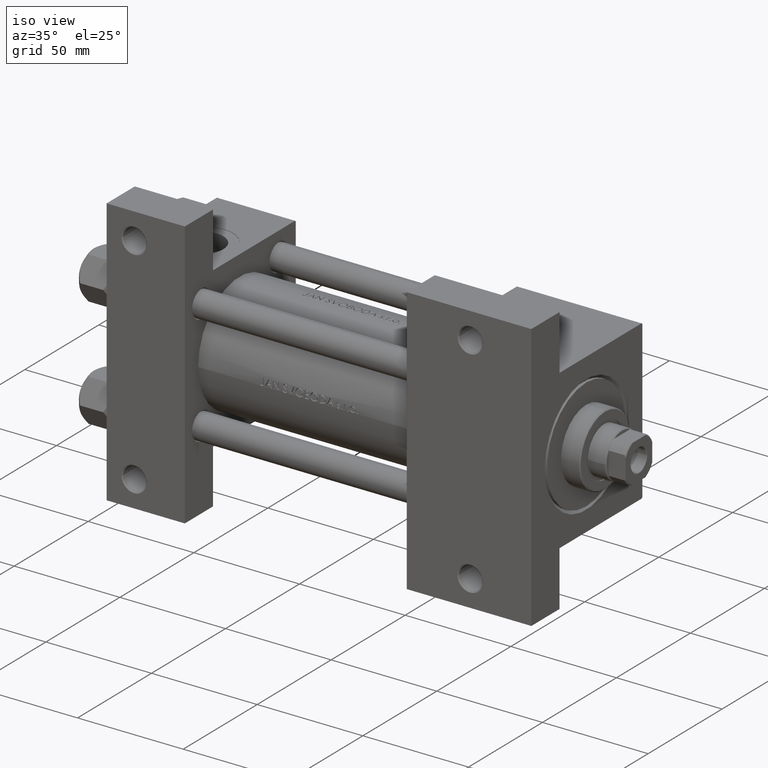
[diagram: clean part render]
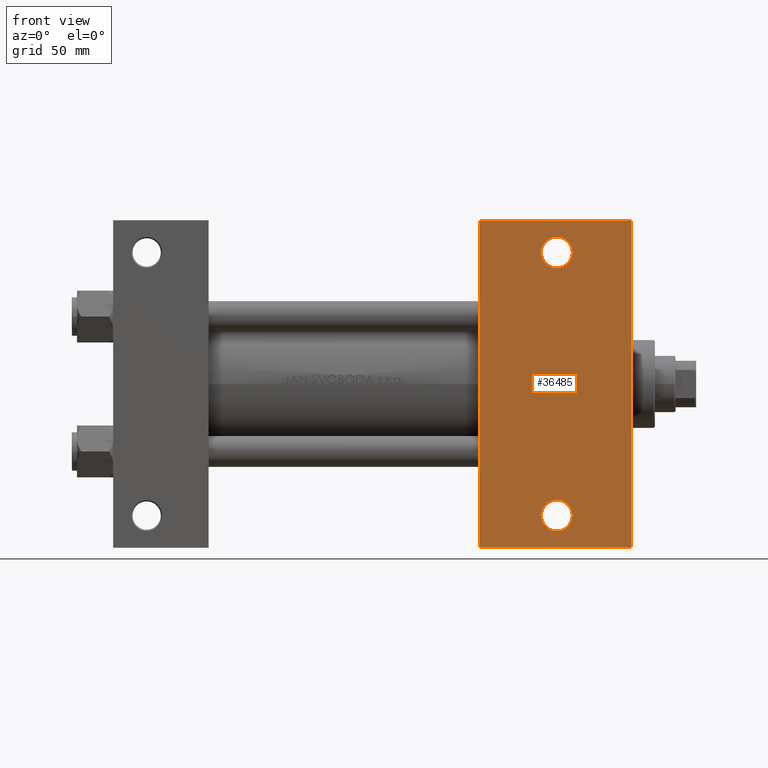
[diagram: tour spotlight — one face highlighted and labeled with its STEP entity id]
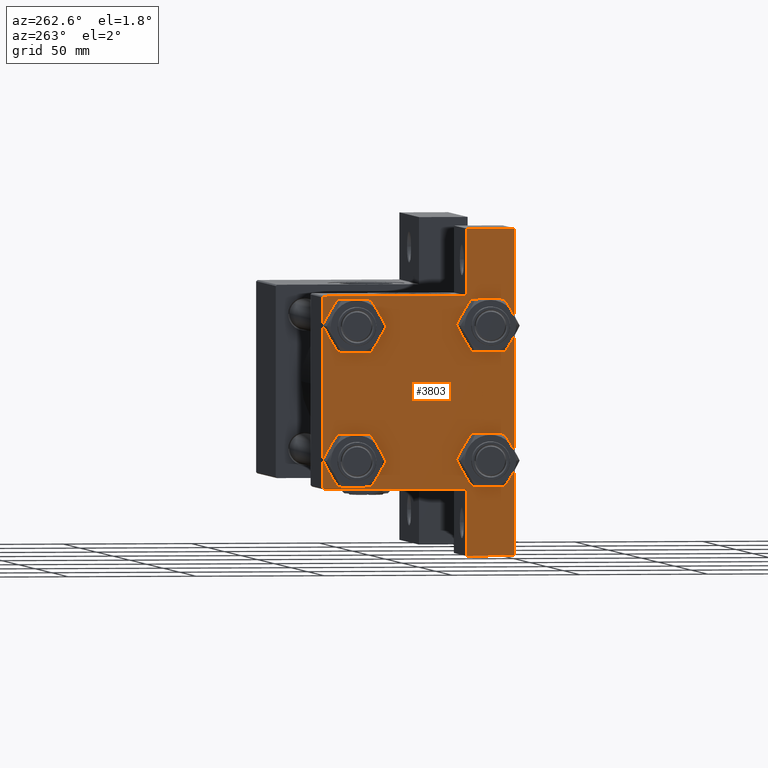
[diagram: tour spotlight — one face highlighted and labeled with its STEP entity id]
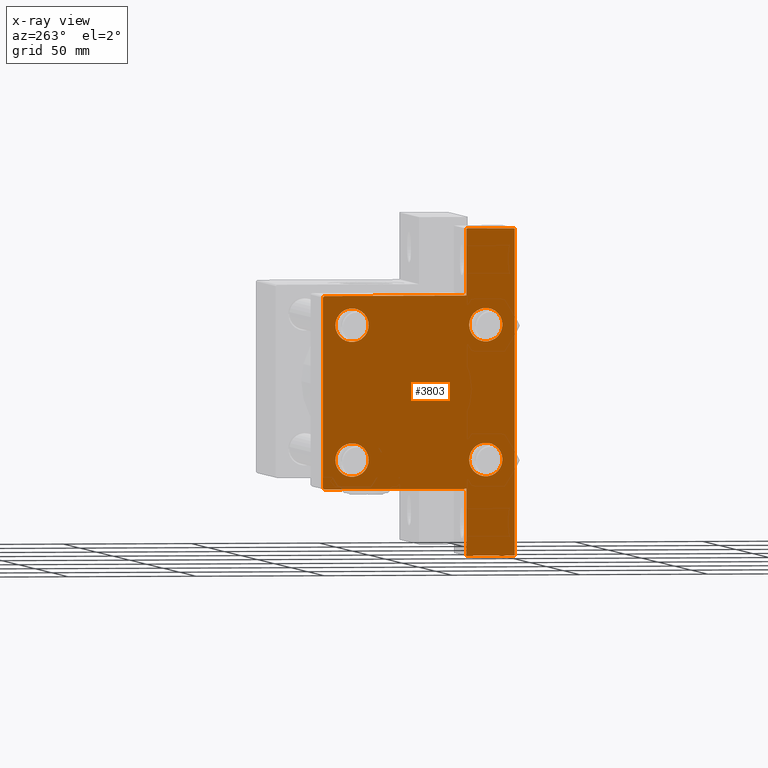
[diagram: x-ray of the same camera — body ghosted, this tour face saturated]
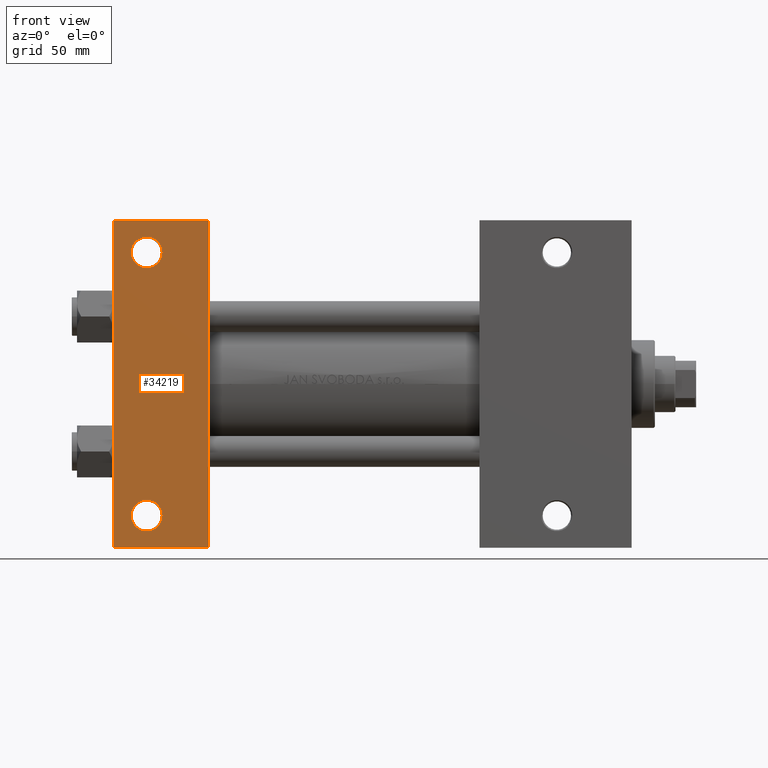
[diagram: tour spotlight — one face highlighted and labeled with its STEP entity id]
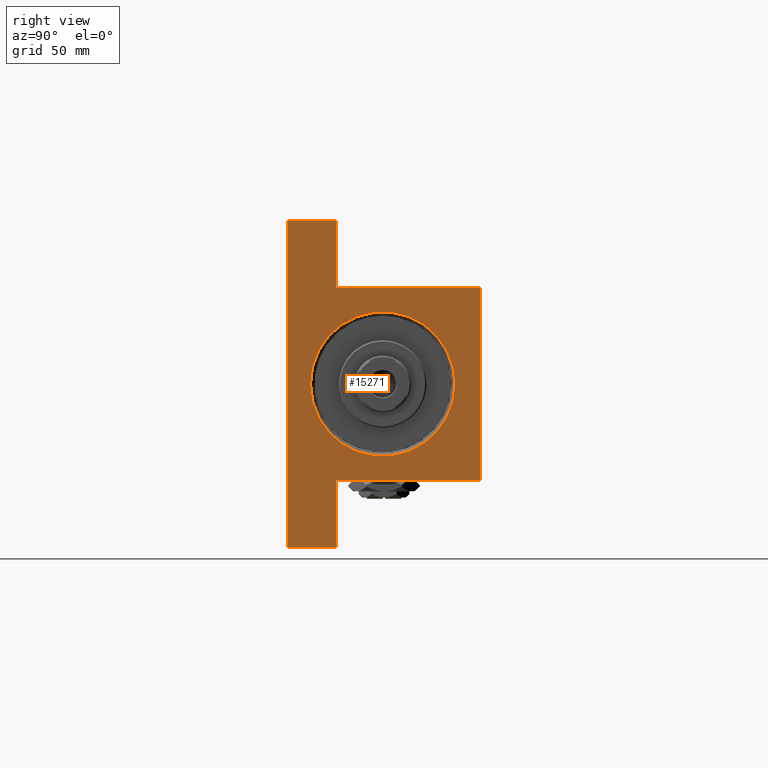
[diagram: tour spotlight — one face highlighted and labeled with its STEP entity id]
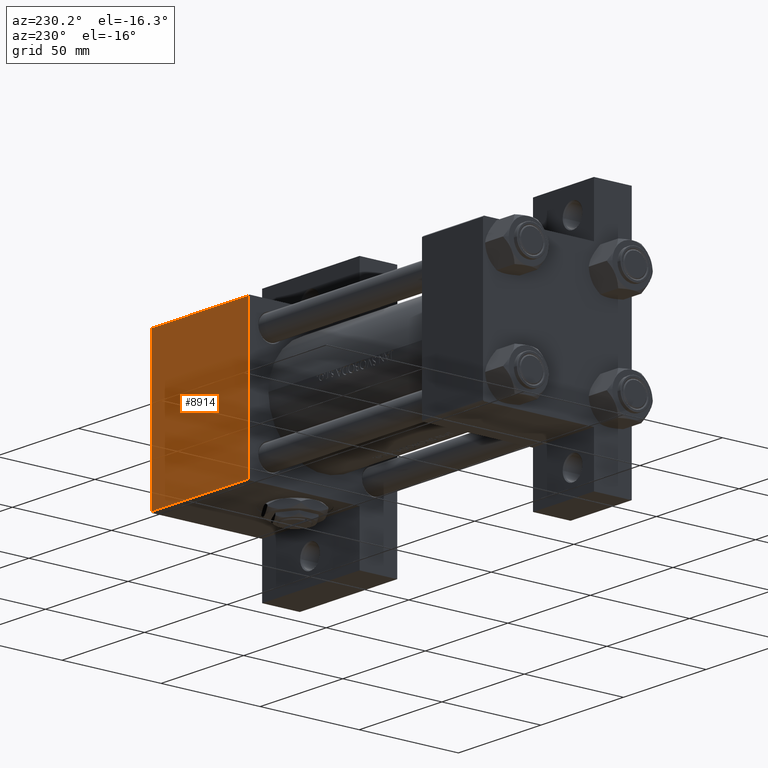
[diagram: tour spotlight — one face highlighted and labeled with its STEP entity id]
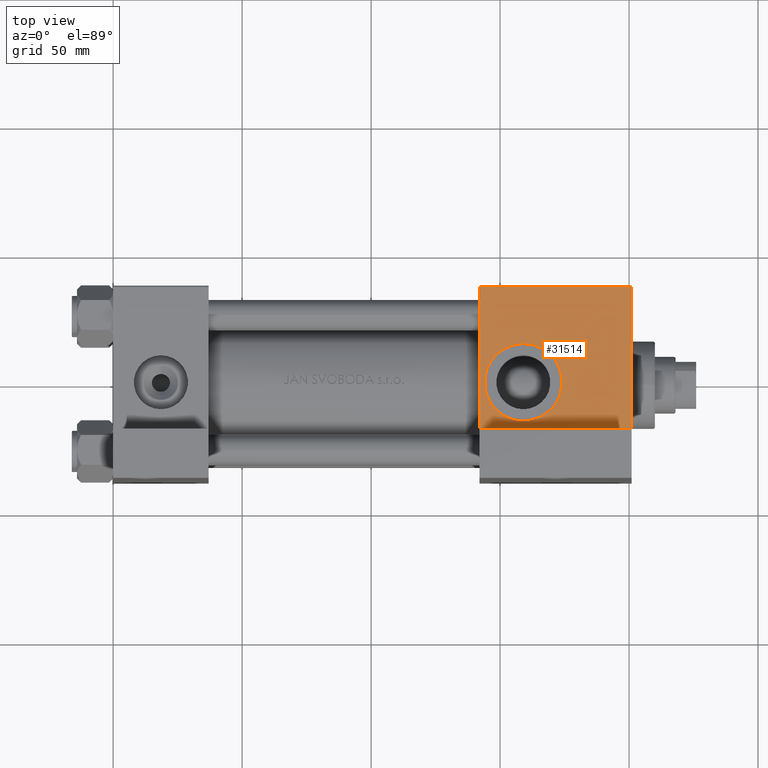
[diagram: tour spotlight — one face highlighted and labeled with its STEP entity id]
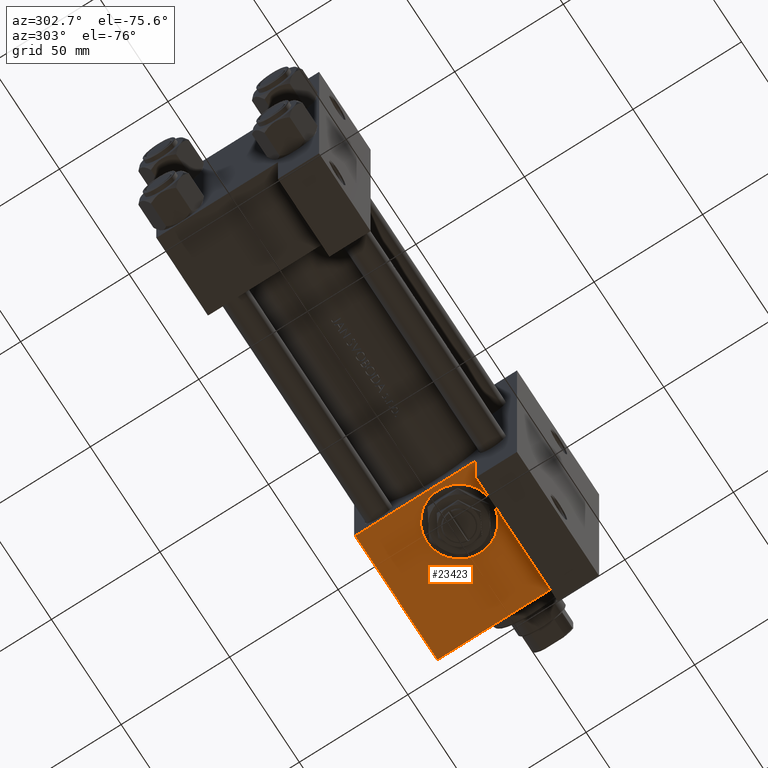
[diagram: tour spotlight — one face highlighted and labeled with its STEP entity id]
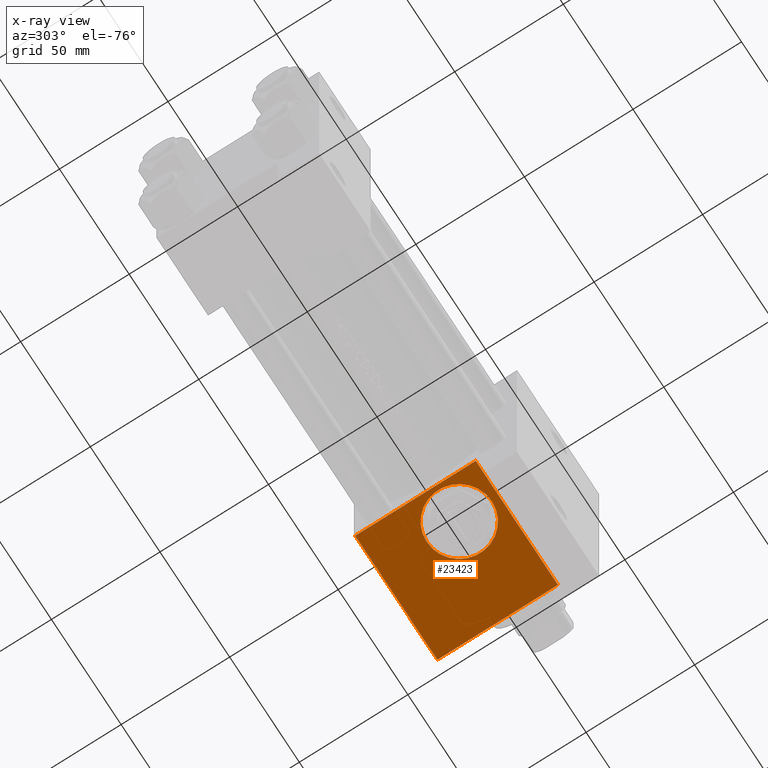
[diagram: x-ray of the same camera — body ghosted, this tour face saturated]
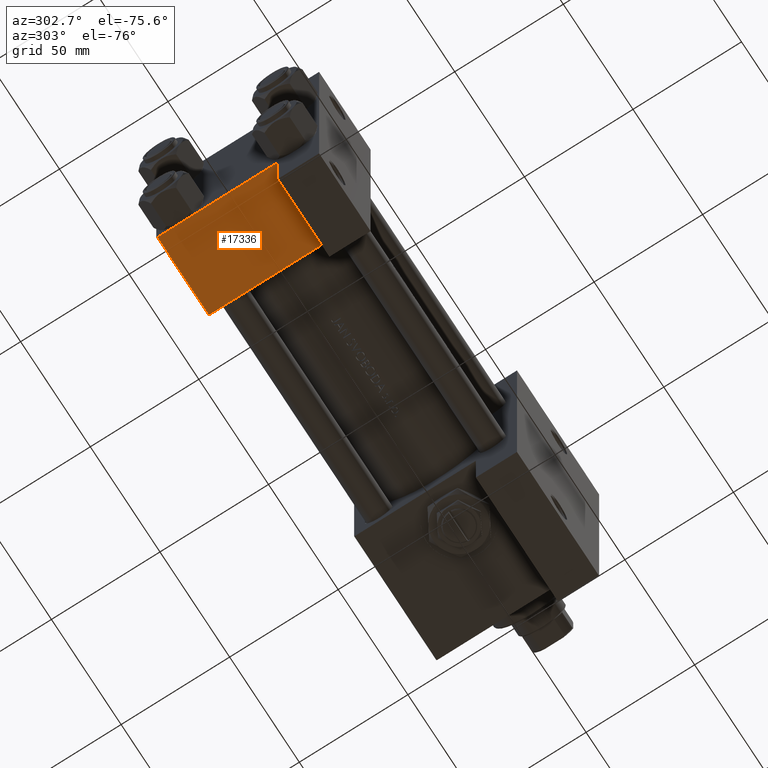
[diagram: tour spotlight — one face highlighted and labeled with its STEP entity id]
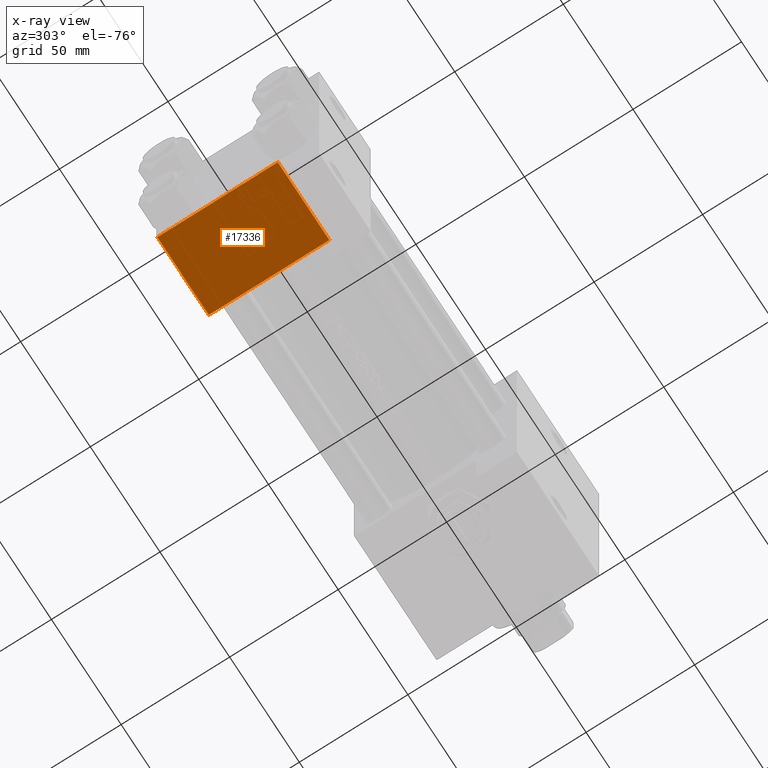
[diagram: x-ray of the same camera — body ghosted, this tour face saturated]
A machine part: a face-by-face anatomy tour. The part has 1134 B-rep faces; the first image is the clean iso view, then the 8 largest visible faces are spotlighted one at a time (largest first), each with its STEP entity span.

Face 1 — front view, entity #36485. In plain terms, the highlighted planar face has unit normal (0, -1, 0).
Definition (entity closure, byte-faithful):
#521 = CIRCLE ( 'NONE', #28338, 5.999499999999990507 ) ;
#1904 = ORIENTED_EDGE ( 'NONE', *, *, #43800, .T. ) ;
#3471 = EDGE_LOOP ( 'NONE', ( #11973, #25262 ) ) ;
#3611 = VERTEX_POINT ( 'NONE', #42711 ) ;
#4929 = FACE_BOUND ( 'NONE', #25292, .T. ) ;
#5040 = DIRECTION ( 'NONE',  ( -0.000000000000000000, -0.000000000000000000, 1.000000000000000000 ) ) ;
#6618 = EDGE_LOOP ( 'NONE', ( #24951, #8845, #25135, #48584 ) ) ;
#8638 = CIRCLE ( 'NONE', #18196, 5.999499999999990507 ) ;
#8845 = ORIENTED_EDGE ( 'NONE', *, *, #11855, .T. ) ;
#10078 = CIRCLE ( 'NONE', #36357, 5.999499999999990507 ) ;
#10451 = DIRECTION ( 'NONE',  ( -0.000000000000000000, -0.000000000000000000, 1.000000000000000000 ) ) ;
#10788 = CARTESIAN_POINT ( 'NONE',  ( 172.0000000000000000, 50.99999999999999289, -37.50000000000000000 ) ) ;
#11437 = CARTESIAN_POINT ( 'NONE',  ( 172.0000000000000000, 50.99999999999999289, -37.50000000000000000 ) ) ;
#11518 = AXIS2_PLACEMENT_3D ( 'NONE', #15887, #12637, #27818 ) ;
#11855 = EDGE_CURVE ( 'NONE', #18084, #38691, #32650, .T. ) ;
#11973 = ORIENTED_EDGE ( 'NONE', *, *, #19754, .T. ) ;
#12637 = DIRECTION ( 'NONE',  ( 0.000000000000000000, 0.000000000000000000, -1.000000000000000000 ) ) ;
#13679 = LINE ( 'NONE', #24885, #48502 ) ;
#13750 = DIRECTION ( 'NONE',  ( 0.000000000000000000, -1.000000000000000000, 0.000000000000000000 ) ) ;
#15174 = VERTEX_POINT ( 'NONE', #28812 ) ;
#15887 = CARTESIAN_POINT ( 'NONE',  ( 200.9999999999999716, 37.50000000000000000, -37.50000000000000000 ) ) ;
#15985 = AXIS2_PLACEMENT_3D ( 'NONE', #10788, #21992, #33453 ) ;
#17045 = ORIENTED_EDGE ( 'NONE', *, *, #45214, .T. ) ;
#17171 = DIRECTION ( 'NONE',  ( 0.000000000000000000, -1.000000000000000000, 0.000000000000000000 ) ) ;
#17409 = CARTESIAN_POINT ( 'NONE',  ( 172.0000000000000000, -50.99999999999999289, -37.50000000000000000 ) ) ;
#17945 = CARTESIAN_POINT ( 'NONE',  ( 142.0000000000000284, 63.49999999999997158, -37.50000000000000000 ) ) ;
#18084 = VERTEX_POINT ( 'NONE', #22276 ) ;
#18196 = AXIS2_PLACEMENT_3D ( 'NONE', #11437, #10451, #41598 ) ;
#19302 = VECTOR ( 'NONE', #23080, 1000.000000000000000 ) ;
#19510 = VERTEX_POINT ( 'NONE', #31647 ) ;
#19754 = EDGE_CURVE ( 'NONE', #32031, #15174, #8638, .T. ) ;
#20098 = FACE_OUTER_BOUND ( 'NONE', #6618, .T. ) ;
#21179 = DIRECTION ( 'NONE',  ( 1.000000000000000000, 4.704334850106593822E-16, 0.000000000000000000 ) ) ;
#21466 = CARTESIAN_POINT ( 'NONE',  ( 200.9999999999999716, 37.50000000000000000, -37.50000000000000000 ) ) ;
#21992 = DIRECTION ( 'NONE',  ( -0.000000000000000000, -0.000000000000000000, 1.000000000000000000 ) ) ;
#21993 = EDGE_CURVE ( 'NONE', #18084, #3611, #13679, .T. ) ;
#22276 = CARTESIAN_POINT ( 'NONE',  ( 142.0000000000000284, 63.49999999999997158, -37.50000000000000000 ) ) ;
#23080 = DIRECTION ( 'NONE',  ( -1.000000000000000000, 4.704334850106593822E-16, -0.000000000000000000 ) ) ;
#24314 = EDGE_CURVE ( 'NONE', #15174, #32031, #26338, .T. ) ;
#24885 = CARTESIAN_POINT ( 'NONE',  ( 142.0000000000000000, 37.50000000000000000, -37.50000000000000000 ) ) ;
#24951 = ORIENTED_EDGE ( 'NONE', *, *, #21993, .F. ) ;
#25127 = DIRECTION ( 'NONE',  ( -0.000000000000000000, -0.000000000000000000, 1.000000000000000000 ) ) ;
#25135 = ORIENTED_EDGE ( 'NONE', *, *, #39107, .T. ) ;
#25262 = ORIENTED_EDGE ( 'NONE', *, *, #24314, .T. ) ;
#25292 = EDGE_LOOP ( 'NONE', ( #1904, #17045 ) ) ;
#26338 = CIRCLE ( 'NONE', #15985, 5.999499999999990507 ) ;
#26669 = CARTESIAN_POINT ( 'NONE',  ( 177.9994999999999834, -50.99999999999999289, -37.50000000000000000 ) ) ;
#26940 = CARTESIAN_POINT ( 'NONE',  ( 166.0004999999999882, -50.99999999999999289, -37.50000000000000000 ) ) ;
#27091 = PLANE ( 'NONE',  #11518 ) ;
#27818 = DIRECTION ( 'NONE',  ( -1.000000000000000000, 0.000000000000000000, -0.000000000000000000 ) ) ;
#28338 = AXIS2_PLACEMENT_3D ( 'NONE', #46648, #5040, #35662 ) ;
#28812 = CARTESIAN_POINT ( 'NONE',  ( 177.9994999999999834, 50.99999999999999289, -37.50000000000000000 ) ) ;
#29238 = CARTESIAN_POINT ( 'NONE',  ( 201.0000000000000284, 63.50000000000000000, -37.50000000000000000 ) ) ;
#29341 = CARTESIAN_POINT ( 'NONE',  ( 166.0004999999999882, 50.99999999999999289, -37.50000000000000000 ) ) ;
#31121 = EDGE_CURVE ( 'NONE', #19510, #3611, #39019, .T. ) ;
#31647 = CARTESIAN_POINT ( 'NONE',  ( 201.0000000000000000, -63.50000000000002842, -37.50000000000000000 ) ) ;
#32031 = VERTEX_POINT ( 'NONE', #29341 ) ;
#32650 = LINE ( 'NONE', #17945, #48290 ) ;
#33347 = DIRECTION ( 'NONE',  ( -1.000000000000000000, 0.000000000000000000, 0.000000000000000000 ) ) ;
#33453 = DIRECTION ( 'NONE',  ( -1.000000000000000000, 0.000000000000000000, 0.000000000000000000 ) ) ;
#35662 = DIRECTION ( 'NONE',  ( -1.000000000000000000, 0.000000000000000000, 0.000000000000000000 ) ) ;
#36357 = AXIS2_PLACEMENT_3D ( 'NONE', #17409, #25127, #33347 ) ;
#36485 = ADVANCED_FACE ( 'NONE', ( #46295, #4929, #20098 ), #27091, .T. ) ;
#38045 = CARTESIAN_POINT ( 'NONE',  ( 142.0000000000000000, -63.50000000000000000, -37.50000000000000000 ) ) ;
#38319 = VERTEX_POINT ( 'NONE', #26669 ) ;
#38691 = VERTEX_POINT ( 'NONE', #29238 ) ;
#39019 = LINE ( 'NONE', #38045, #19302 ) ;
#39107 = EDGE_CURVE ( 'NONE', #38691, #19510, #39922, .T. ) ;
#39433 = VECTOR ( 'NONE', #13750, 1000.000000000000000 ) ;
#39922 = LINE ( 'NONE', #21466, #39433 ) ;
#41598 = DIRECTION ( 'NONE',  ( -1.000000000000000000, 0.000000000000000000, 0.000000000000000000 ) ) ;
#42711 = CARTESIAN_POINT ( 'NONE',  ( 142.0000000000000000, -63.50000000000000000, -37.50000000000000000 ) ) ;
#43800 = EDGE_CURVE ( 'NONE', #49242, #38319, #521, .T. ) ;
#45214 = EDGE_CURVE ( 'NONE', #38319, #49242, #10078, .T. ) ;
#46295 = FACE_BOUND ( 'NONE', #3471, .T. ) ;
#46648 = CARTESIAN_POINT ( 'NONE',  ( 172.0000000000000000, -50.99999999999999289, -37.50000000000000000 ) ) ;
#48290 = VECTOR ( 'NONE', #21179, 1000.000000000000000 ) ;
#48502 = VECTOR ( 'NONE', #17171, 1000.000000000000000 ) ;
#48584 = ORIENTED_EDGE ( 'NONE', *, *, #31121, .T. ) ;
#49242 = VERTEX_POINT ( 'NONE', #26940 ) ;

Face 2 — auxiliary view, entity #3803. An x-ray twin of the same camera follows (body ghosted, this face saturated) — the face is partly hidden behind the body. In plain terms, the highlighted planar face has unit normal (-1, 0, -0).
Definition (entity closure, byte-faithful):
#558 = CARTESIAN_POINT ( 'NONE',  ( 3.977209754999744250E-16, -63.49999999999998579, -18.50000000000000355 ) ) ;
#1279 = CIRCLE ( 'NONE', #14792, 6.500000000000015987 ) ;
#1545 = CARTESIAN_POINT ( 'NONE',  ( 3.977209754999747208E-16, -63.50000000000000000, -18.50000000000000355 ) ) ;
#1841 = CIRCLE ( 'NONE', #8991, 6.500000000000015987 ) ;
#1909 = EDGE_CURVE ( 'NONE', #16395, #27326, #9878, .T. ) ;
#2350 = VERTEX_POINT ( 'NONE', #31603 ) ;
#2534 = VERTEX_POINT ( 'NONE', #22116 ) ;
#2601 = AXIS2_PLACEMENT_3D ( 'NONE', #22898, #33630, #48817 ) ;
#2610 = ORIENTED_EDGE ( 'NONE', *, *, #46329, .F. ) ;
#2964 = DIRECTION ( 'NONE',  ( 1.000000000000000000, -0.000000000000000000, 0.000000000000000000 ) ) ;
#3083 = EDGE_CURVE ( 'NONE', #16532, #49250, #40983, .T. ) ;
#3142 = CARTESIAN_POINT ( 'NONE',  ( 0.000000000000000000, 37.49999999999999289, 37.00000000000000000 ) ) ;
#3720 = VECTOR ( 'NONE', #8116, 1000.000000000000114 ) ;
#3803 = ADVANCED_FACE ( 'NONE', ( #32456, #44419, #6317, #40439, #44169 ), #36692, .T. ) ;
#4871 = CARTESIAN_POINT ( 'NONE',  ( 0.000000000000000000, 37.24999999999999289, 37.24999999999999289 ) ) ;
#5171 = CARTESIAN_POINT ( 'NONE',  ( 0.000000000000000000, 37.49999999999999289, 37.50000000000000000 ) ) ;
#5551 = CARTESIAN_POINT ( 'NONE',  ( 0.000000000000000000, -26.14999999999999147, -26.15000000000000924 ) ) ;
#5576 = DIRECTION ( 'NONE',  ( -1.000000000000000000, 0.000000000000000000, -0.000000000000000000 ) ) ;
#5735 = VERTEX_POINT ( 'NONE', #20448 ) ;
#5814 = DIRECTION ( 'NONE',  ( -0.000000000000000000, 0.000000000000000000, 1.000000000000000000 ) ) ;
#6035 = CARTESIAN_POINT ( 'NONE',  ( 0.000000000000000000, 26.14999999999999858, -26.15000000000000213 ) ) ;
#6317 = FACE_BOUND ( 'NONE', #39055, .T. ) ;
#6421 = EDGE_LOOP ( 'NONE', ( #18048, #12710 ) ) ;
#6532 = ORIENTED_EDGE ( 'NONE', *, *, #28188, .T. ) ;
#6660 = VERTEX_POINT ( 'NONE', #7084 ) ;
#7033 = ORIENTED_EDGE ( 'NONE', *, *, #25773, .T. ) ;
#7084 = CARTESIAN_POINT ( 'NONE',  ( 0.000000000000000000, -26.14999999999999147, -19.64999999999999503 ) ) ;
#7425 = DIRECTION ( 'NONE',  ( 0.000000000000000000, 0.000000000000000000, 1.000000000000000000 ) ) ;
#7543 = ORIENTED_EDGE ( 'NONE', *, *, #3083, .T. ) ;
#7582 = VERTEX_POINT ( 'NONE', #18541 ) ;
#8021 = CARTESIAN_POINT ( 'NONE',  ( 0.000000000000000000, 26.14999999999999858, -26.15000000000000213 ) ) ;
#8116 = DIRECTION ( 'NONE',  ( 0.000000000000000000, 0.7071067811865474617, -0.7071067811865474617 ) ) ;
#8165 = LINE ( 'NONE', #5171, #18116 ) ;
#8541 = LINE ( 'NONE', #46419, #46914 ) ;
#8643 = CIRCLE ( 'NONE', #37268, 6.500000000000015987 ) ;
#8768 = LINE ( 'NONE', #558, #26051 ) ;
#8949 = DIRECTION ( 'NONE',  ( 0.000000000000000000, 0.000000000000000000, 1.000000000000000000 ) ) ;
#8991 = AXIS2_PLACEMENT_3D ( 'NONE', #20142, #39093, #8949 ) ;
#9179 = CARTESIAN_POINT ( 'NONE',  ( 3.977209754999747208E-16, -63.50000000000000000, -37.49999999999999289 ) ) ;
#9319 = CARTESIAN_POINT ( 'NONE',  ( 0.000000000000000000, 26.14999999999999858, -32.65000000000001990 ) ) ;
#9878 = CIRCLE ( 'NONE', #26594, 6.500000000000023093 ) ;
#10465 = EDGE_CURVE ( 'NONE', #2350, #42023, #31755, .T. ) ;
#11235 = ORIENTED_EDGE ( 'NONE', *, *, #47659, .T. ) ;
#11807 = VECTOR ( 'NONE', #48259, 1000.000000000000000 ) ;
#12196 = ORIENTED_EDGE ( 'NONE', *, *, #1909, .T. ) ;
#12445 = ORIENTED_EDGE ( 'NONE', *, *, #10465, .T. ) ;
#12710 = ORIENTED_EDGE ( 'NONE', *, *, #31791, .T. ) ;
#12725 = CARTESIAN_POINT ( 'NONE',  ( 0.000000000000000000, -26.14999999999999147, 19.64999999999999147 ) ) ;
#12765 = DIRECTION ( 'NONE',  ( -0.000000000000000000, 0.7071067811865474617, 0.7071067811865474617 ) ) ;
#12826 = AXIS2_PLACEMENT_3D ( 'NONE', #44810, #2964, #28595 ) ;
#12930 = CIRCLE ( 'NONE', #2601, 6.500000000000023093 ) ;
#13038 = VERTEX_POINT ( 'NONE', #1545 ) ;
#13164 = CARTESIAN_POINT ( 'NONE',  ( 1.595073532467135441E-14, 63.50000000000000000, -37.50000000000002132 ) ) ;
#13501 = DIRECTION ( 'NONE',  ( 1.000000000000000000, -0.000000000000000000, 0.000000000000000000 ) ) ;
#14500 = LINE ( 'NONE', #48631, #28523 ) ;
#14610 = EDGE_LOOP ( 'NONE', ( #7543, #7033 ) ) ;
#14792 = AXIS2_PLACEMENT_3D ( 'NONE', #6035, #17719, #47384 ) ;
#15203 = CARTESIAN_POINT ( 'NONE',  ( 0.000000000000000000, -37.50000000000000711, 36.99999999999999289 ) ) ;
#15274 = EDGE_CURVE ( 'NONE', #26379, #7582, #25335, .T. ) ;
#15379 = EDGE_CURVE ( 'NONE', #2350, #5735, #28200, .T. ) ;
#15524 = CARTESIAN_POINT ( 'NONE',  ( 0.000000000000000000, -26.14999999999999147, -32.65000000000002700 ) ) ;
#15602 = CARTESIAN_POINT ( 'NONE',  ( 0.000000000000000000, -26.14999999999999147, 26.15000000000000924 ) ) ;
#15609 = CARTESIAN_POINT ( 'NONE',  ( 0.000000000000000000, 26.14999999999999858, 26.15000000000000213 ) ) ;
#15690 = EDGE_CURVE ( 'NONE', #44465, #2534, #8643, .T. ) ;
#15851 = CARTESIAN_POINT ( 'NONE',  ( 0.000000000000000000, 26.14999999999999858, 32.65000000000002700 ) ) ;
#16208 = AXIS2_PLACEMENT_3D ( 'NONE', #35948, #5576, #5814 ) ;
#16395 = VERTEX_POINT ( 'NONE', #15851 ) ;
#16532 = VERTEX_POINT ( 'NONE', #42464 ) ;
#16567 = VECTOR ( 'NONE', #42700, 1000.000000000000000 ) ;
#17653 = VECTOR ( 'NONE', #22889, 1000.000000000000000 ) ;
#17719 = DIRECTION ( 'NONE',  ( 1.000000000000000000, -0.000000000000000000, 0.000000000000000000 ) ) ;
#17732 = CARTESIAN_POINT ( 'NONE',  ( 1.595073532467135441E-14, 63.50000000000000000, -18.50000000000000355 ) ) ;
#17798 = ORIENTED_EDGE ( 'NONE', *, *, #42549, .F. ) ;
#17819 = CARTESIAN_POINT ( 'NONE',  ( -7.145701223179004046E-16, -37.50000000000000711, -18.50000000000000355 ) ) ;
#17857 = CARTESIAN_POINT ( 'NONE',  ( 1.595073532467135757E-14, 63.50000000000001421, -18.50000000000000355 ) ) ;
#17924 = ORIENTED_EDGE ( 'NONE', *, *, #30825, .T. ) ;
#18048 = ORIENTED_EDGE ( 'NONE', *, *, #21846, .T. ) ;
#18116 = VECTOR ( 'NONE', #42546, 1000.000000000000000 ) ;
#18237 = VERTEX_POINT ( 'NONE', #15524 ) ;
#18541 = CARTESIAN_POINT ( 'NONE',  ( 0.000000000000000000, 37.49999999999999289, -18.49999999999999645 ) ) ;
#19427 = EDGE_CURVE ( 'NONE', #13038, #45569, #14500, .T. ) ;
#19776 = CARTESIAN_POINT ( 'NONE',  ( 0.000000000000000000, -37.50000000000000711, 37.49999999999999289 ) ) ;
#20142 = CARTESIAN_POINT ( 'NONE',  ( 0.000000000000000000, -26.14999999999999147, -26.15000000000000924 ) ) ;
#20194 = ORIENTED_EDGE ( 'NONE', *, *, #38216, .T. ) ;
#20448 = CARTESIAN_POINT ( 'NONE',  ( 0.000000000000000000, -37.00000000000000711, 37.49999999999999289 ) ) ;
#20731 = ORIENTED_EDGE ( 'NONE', *, *, #15690, .T. ) ;
#21649 = EDGE_CURVE ( 'NONE', #43886, #5735, #8541, .T. ) ;
#21846 = EDGE_CURVE ( 'NONE', #6660, #18237, #42153, .T. ) ;
#22116 = CARTESIAN_POINT ( 'NONE',  ( 0.000000000000000000, 26.14999999999999858, -19.64999999999998792 ) ) ;
#22349 = DIRECTION ( 'NONE',  ( 1.000000000000000000, -0.000000000000000000, 0.000000000000000000 ) ) ;
#22389 = CIRCLE ( 'NONE', #12826, 6.500000000000023093 ) ;
#22786 = LINE ( 'NONE', #34261, #48708 ) ;
#22889 = DIRECTION ( 'NONE',  ( 0.000000000000000000, -1.734723475976806848E-16, -1.000000000000000000 ) ) ;
#22898 = CARTESIAN_POINT ( 'NONE',  ( 0.000000000000000000, 26.14999999999999858, 26.15000000000000213 ) ) ;
#23070 = ORIENTED_EDGE ( 'NONE', *, *, #15274, .F. ) ;
#23520 = LINE ( 'NONE', #19776, #36286 ) ;
#24298 = LINE ( 'NONE', #26870, #17653 ) ;
#25335 = LINE ( 'NONE', #17857, #11807 ) ;
#25773 = EDGE_CURVE ( 'NONE', #49250, #16532, #22389, .T. ) ;
#25959 = DIRECTION ( 'NONE',  ( 1.000000000000000000, -0.000000000000000000, 0.000000000000000000 ) ) ;
#26051 = VECTOR ( 'NONE', #42411, 1000.000000000000000 ) ;
#26379 = VERTEX_POINT ( 'NONE', #17732 ) ;
#26594 = AXIS2_PLACEMENT_3D ( 'NONE', #15609, #46023, #7425 ) ;
#26870 = CARTESIAN_POINT ( 'NONE',  ( 1.595073532467135441E-14, 63.50000000000001421, 26.72167621838005047 ) ) ;
#27111 = EDGE_LOOP ( 'NONE', ( #17798, #47319, #28195, #12445, #11235, #23070, #40122, #6532, #42206, #2610 ) ) ;
#27231 = CARTESIAN_POINT ( 'NONE',  ( 0.000000000000000000, 37.49999999999999289, 37.50000000000000000 ) ) ;
#27326 = VERTEX_POINT ( 'NONE', #42157 ) ;
#28188 = EDGE_CURVE ( 'NONE', #45589, #45569, #22786, .T. ) ;
#28195 = ORIENTED_EDGE ( 'NONE', *, *, #15379, .F. ) ;
#28200 = LINE ( 'NONE', #27231, #16567 ) ;
#28523 = VECTOR ( 'NONE', #45646, 1000.000000000000000 ) ;
#28595 = DIRECTION ( 'NONE',  ( 0.000000000000000000, 0.000000000000000000, 1.000000000000000000 ) ) ;
#28679 = DIRECTION ( 'NONE',  ( 0.000000000000000000, 0.000000000000000000, 1.000000000000000000 ) ) ;
#30091 = EDGE_CURVE ( 'NONE', #26379, #45589, #24298, .T. ) ;
#30369 = EDGE_LOOP ( 'NONE', ( #12196, #17924 ) ) ;
#30825 = EDGE_CURVE ( 'NONE', #27326, #16395, #12930, .T. ) ;
#31603 = CARTESIAN_POINT ( 'NONE',  ( 0.000000000000000000, 36.99999999999999289, 37.50000000000000000 ) ) ;
#31755 = LINE ( 'NONE', #4871, #3720 ) ;
#31791 = EDGE_CURVE ( 'NONE', #18237, #6660, #1841, .T. ) ;
#32456 = FACE_BOUND ( 'NONE', #14610, .T. ) ;
#33630 = DIRECTION ( 'NONE',  ( 1.000000000000000000, -0.000000000000000000, 0.000000000000000000 ) ) ;
#34261 = CARTESIAN_POINT ( 'NONE',  ( 0.000000000000000000, 37.49999999999999289, -37.50000000000000000 ) ) ;
#34741 = DIRECTION ( 'NONE',  ( 0.000000000000000000, -1.000000000000000000, -9.251858538542972814E-17 ) ) ;
#35948 = CARTESIAN_POINT ( 'NONE',  ( 0.000000000000000000, 0.000000000000000000, 0.000000000000000000 ) ) ;
#36286 = VECTOR ( 'NONE', #38719, 1000.000000000000000 ) ;
#36692 = PLANE ( 'NONE',  #16208 ) ;
#37268 = AXIS2_PLACEMENT_3D ( 'NONE', #8021, #25959, #37423 ) ;
#37423 = DIRECTION ( 'NONE',  ( 0.000000000000000000, 0.000000000000000000, 1.000000000000000000 ) ) ;
#38216 = EDGE_CURVE ( 'NONE', #2534, #44465, #1279, .T. ) ;
#38719 = DIRECTION ( 'NONE',  ( 0.000000000000000000, 9.251858538542971581E-17, -1.000000000000000000 ) ) ;
#39055 = EDGE_LOOP ( 'NONE', ( #20194, #20731 ) ) ;
#39093 = DIRECTION ( 'NONE',  ( 1.000000000000000000, -0.000000000000000000, 0.000000000000000000 ) ) ;
#40122 = ORIENTED_EDGE ( 'NONE', *, *, #30091, .T. ) ;
#40439 = FACE_BOUND ( 'NONE', #30369, .T. ) ;
#40983 = CIRCLE ( 'NONE', #48115, 6.500000000000023093 ) ;
#42023 = VERTEX_POINT ( 'NONE', #3142 ) ;
#42153 = CIRCLE ( 'NONE', #46134, 6.500000000000015987 ) ;
#42157 = CARTESIAN_POINT ( 'NONE',  ( 0.000000000000000000, 26.14999999999999858, 19.64999999999998437 ) ) ;
#42206 = ORIENTED_EDGE ( 'NONE', *, *, #19427, .F. ) ;
#42411 = DIRECTION ( 'NONE',  ( 4.278042683914906889E-17, -1.000000000000000000, 0.000000000000000000 ) ) ;
#42464 = CARTESIAN_POINT ( 'NONE',  ( 0.000000000000000000, -26.14999999999999147, 32.65000000000003411 ) ) ;
#42546 = DIRECTION ( 'NONE',  ( 0.000000000000000000, 0.000000000000000000, -1.000000000000000000 ) ) ;
#42549 = EDGE_CURVE ( 'NONE', #43886, #45922, #23520, .T. ) ;
#42700 = DIRECTION ( 'NONE',  ( 0.000000000000000000, -1.000000000000000000, -9.251858538542971581E-17 ) ) ;
#43886 = VERTEX_POINT ( 'NONE', #15203 ) ;
#44169 = FACE_OUTER_BOUND ( 'NONE', #27111, .T. ) ;
#44419 = FACE_BOUND ( 'NONE', #6421, .T. ) ;
#44465 = VERTEX_POINT ( 'NONE', #9319 ) ;
#44810 = CARTESIAN_POINT ( 'NONE',  ( 0.000000000000000000, -26.14999999999999147, 26.15000000000000924 ) ) ;
#45569 = VERTEX_POINT ( 'NONE', #9179 ) ;
#45589 = VERTEX_POINT ( 'NONE', #13164 ) ;
#45646 = DIRECTION ( 'NONE',  ( 0.000000000000000000, -1.734723475976806848E-16, -1.000000000000000000 ) ) ;
#45922 = VERTEX_POINT ( 'NONE', #17819 ) ;
#46017 = DIRECTION ( 'NONE',  ( 0.000000000000000000, 0.000000000000000000, 1.000000000000000000 ) ) ;
#46023 = DIRECTION ( 'NONE',  ( 1.000000000000000000, -0.000000000000000000, 0.000000000000000000 ) ) ;
#46134 = AXIS2_PLACEMENT_3D ( 'NONE', #5551, #13501, #28679 ) ;
#46329 = EDGE_CURVE ( 'NONE', #45922, #13038, #8768, .T. ) ;
#46419 = CARTESIAN_POINT ( 'NONE',  ( -0.000000000000000000, -37.25000000000000000, 37.25000000000000000 ) ) ;
#46914 = VECTOR ( 'NONE', #12765, 1000.000000000000114 ) ;
#47319 = ORIENTED_EDGE ( 'NONE', *, *, #21649, .T. ) ;
#47384 = DIRECTION ( 'NONE',  ( 0.000000000000000000, 0.000000000000000000, 1.000000000000000000 ) ) ;
#47659 = EDGE_CURVE ( 'NONE', #42023, #7582, #8165, .T. ) ;
#48115 = AXIS2_PLACEMENT_3D ( 'NONE', #15602, #22349, #46017 ) ;
#48259 = DIRECTION ( 'NONE',  ( -2.877097866686192789E-16, -1.000000000000000000, 0.000000000000000000 ) ) ;
#48631 = CARTESIAN_POINT ( 'NONE',  ( 3.977209754999747208E-16, -63.49999999999998579, 26.72167621838007889 ) ) ;
#48708 = VECTOR ( 'NONE', #34741, 1000.000000000000000 ) ;
#48817 = DIRECTION ( 'NONE',  ( 0.000000000000000000, 0.000000000000000000, 1.000000000000000000 ) ) ;
#49250 = VERTEX_POINT ( 'NONE', #12725 ) ;

Face 3 — front view, entity #34219. In plain terms, the highlighted planar face has unit normal (0, -1, -0).
Definition (entity closure, byte-faithful):
#1056 = ORIENTED_EDGE ( 'NONE', *, *, #32758, .T. ) ;
#1136 = ORIENTED_EDGE ( 'NONE', *, *, #23187, .T. ) ;
#1585 = DIRECTION ( 'NONE',  ( -0.000000000000000000, -9.251858538542972814E-17, 1.000000000000000000 ) ) ;
#2004 = EDGE_LOOP ( 'NONE', ( #38518, #4333 ) ) ;
#4333 = ORIENTED_EDGE ( 'NONE', *, *, #19773, .T. ) ;
#4694 = CARTESIAN_POINT ( 'NONE',  ( 12.99999999999999822, 50.99999999999997868, -37.50000000000000000 ) ) ;
#5535 = DIRECTION ( 'NONE',  ( 0.000000000000000000, -1.000000000000000000, -9.251858538542972814E-17 ) ) ;
#6723 = DIRECTION ( 'NONE',  ( 0.000000000000000000, 1.000000000000000000, 0.000000000000000000 ) ) ;
#7946 = VERTEX_POINT ( 'NONE', #34351 ) ;
#8319 = DIRECTION ( 'NONE',  ( 0.000000000000000000, 1.000000000000000000, 0.000000000000000000 ) ) ;
#8379 = CARTESIAN_POINT ( 'NONE',  ( 18.99949999999998695, 50.99999999999997868, -37.50000000000000000 ) ) ;
#8874 = EDGE_LOOP ( 'NONE', ( #46482, #28670, #39318, #25954 ) ) ;
#9179 = CARTESIAN_POINT ( 'NONE',  ( 3.977209754999747208E-16, -63.50000000000000000, -37.49999999999999289 ) ) ;
#9635 = FACE_BOUND ( 'NONE', #33053, .T. ) ;
#9853 = EDGE_CURVE ( 'NONE', #40933, #7946, #39165, .T. ) ;
#9910 = CARTESIAN_POINT ( 'NONE',  ( 3.977209754999747208E-16, -63.50000000000000000, -37.49999999999999289 ) ) ;
#9931 = VECTOR ( 'NONE', #25108, 1000.000000000000000 ) ;
#10658 = AXIS2_PLACEMENT_3D ( 'NONE', #36038, #29297, #17354 ) ;
#11267 = EDGE_CURVE ( 'NONE', #28432, #16287, #22795, .T. ) ;
#11358 = CARTESIAN_POINT ( 'NONE',  ( 18.99949999999998695, -51.00000000000000711, -37.50000000000000711 ) ) ;
#12628 = VERTEX_POINT ( 'NONE', #11358 ) ;
#12733 = CARTESIAN_POINT ( 'NONE',  ( 1.595073532467135441E-14, 63.50000000000000000, -37.50000000000002132 ) ) ;
#13164 = CARTESIAN_POINT ( 'NONE',  ( 1.595073532467135441E-14, 63.50000000000000000, -37.50000000000002132 ) ) ;
#13395 = CIRCLE ( 'NONE', #47606, 5.999499999999990507 ) ;
#14115 = FACE_OUTER_BOUND ( 'NONE', #8874, .T. ) ;
#15155 = DIRECTION ( 'NONE',  ( 0.000000000000000000, 1.000000000000000000, 0.000000000000000000 ) ) ;
#16281 = CARTESIAN_POINT ( 'NONE',  ( 37.00000000000001421, 63.50000000000000000, -37.50000000000002132 ) ) ;
#16287 = VERTEX_POINT ( 'NONE', #8379 ) ;
#17354 = DIRECTION ( 'NONE',  ( 0.000000000000000000, 1.000000000000000000, 9.251858538542972814E-17 ) ) ;
#17465 = DIRECTION ( 'NONE',  ( -0.000000000000000000, -9.251858538542972814E-17, 1.000000000000000000 ) ) ;
#17519 = CIRCLE ( 'NONE', #37443, 5.999499999999990507 ) ;
#19773 = EDGE_CURVE ( 'NONE', #16287, #28432, #13395, .T. ) ;
#21111 = LINE ( 'NONE', #9910, #9931 ) ;
#21578 = FACE_BOUND ( 'NONE', #2004, .T. ) ;
#22786 = LINE ( 'NONE', #34261, #48708 ) ;
#22795 = CIRCLE ( 'NONE', #35525, 5.999499999999990507 ) ;
#23187 = EDGE_CURVE ( 'NONE', #39853, #12628, #17519, .T. ) ;
#24352 = VECTOR ( 'NONE', #5535, 1000.000000000000000 ) ;
#24934 = CARTESIAN_POINT ( 'NONE',  ( 37.00000000000000000, 37.49999999999999289, -37.50000000000000000 ) ) ;
#25108 = DIRECTION ( 'NONE',  ( -1.000000000000000000, -0.000000000000000000, -0.000000000000000000 ) ) ;
#25954 = ORIENTED_EDGE ( 'NONE', *, *, #41555, .T. ) ;
#28022 = CARTESIAN_POINT ( 'NONE',  ( 7.000500000000006828, -51.00000000000000711, -37.50000000000000711 ) ) ;
#28188 = EDGE_CURVE ( 'NONE', #45589, #45569, #22786, .T. ) ;
#28432 = VERTEX_POINT ( 'NONE', #38587 ) ;
#28670 = ORIENTED_EDGE ( 'NONE', *, *, #41157, .T. ) ;
#29297 = DIRECTION ( 'NONE',  ( 0.000000000000000000, 9.251858538542972814E-17, -1.000000000000000000 ) ) ;
#32658 = DIRECTION ( 'NONE',  ( 0.000000000000000000, 1.000000000000000000, 0.000000000000000000 ) ) ;
#32758 = EDGE_CURVE ( 'NONE', #12628, #39853, #47226, .T. ) ;
#33053 = EDGE_LOOP ( 'NONE', ( #1136, #1056 ) ) ;
#34105 = DIRECTION ( 'NONE',  ( -0.000000000000000000, -9.251858538542972814E-17, 1.000000000000000000 ) ) ;
#34219 = ADVANCED_FACE ( 'NONE', ( #21578, #9635, #14115 ), #36780, .T. ) ;
#34261 = CARTESIAN_POINT ( 'NONE',  ( 0.000000000000000000, 37.49999999999999289, -37.50000000000000000 ) ) ;
#34351 = CARTESIAN_POINT ( 'NONE',  ( 37.00000000000000000, -63.50000000000000000, -37.49999999999999289 ) ) ;
#34741 = DIRECTION ( 'NONE',  ( 0.000000000000000000, -1.000000000000000000, -9.251858538542972814E-17 ) ) ;
#35525 = AXIS2_PLACEMENT_3D ( 'NONE', #4694, #34105, #15155 ) ;
#36038 = CARTESIAN_POINT ( 'NONE',  ( 37.00000000000000000, 37.49999999999999289, -37.50000000000000000 ) ) ;
#36213 = VECTOR ( 'NONE', #39390, 1000.000000000000000 ) ;
#36780 = PLANE ( 'NONE',  #10658 ) ;
#36864 = AXIS2_PLACEMENT_3D ( 'NONE', #43879, #17465, #32658 ) ;
#37103 = CARTESIAN_POINT ( 'NONE',  ( 12.99999999999999822, 50.99999999999997868, -37.50000000000000000 ) ) ;
#37443 = AXIS2_PLACEMENT_3D ( 'NONE', #38958, #1585, #8319 ) ;
#38518 = ORIENTED_EDGE ( 'NONE', *, *, #11267, .T. ) ;
#38587 = CARTESIAN_POINT ( 'NONE',  ( 7.000500000000006828, 50.99999999999997868, -37.50000000000000000 ) ) ;
#38958 = CARTESIAN_POINT ( 'NONE',  ( 12.99999999999999822, -51.00000000000000711, -37.50000000000000711 ) ) ;
#39165 = LINE ( 'NONE', #24934, #24352 ) ;
#39318 = ORIENTED_EDGE ( 'NONE', *, *, #9853, .T. ) ;
#39390 = DIRECTION ( 'NONE',  ( 1.000000000000000000, 0.000000000000000000, 0.000000000000000000 ) ) ;
#39853 = VERTEX_POINT ( 'NONE', #28022 ) ;
#40933 = VERTEX_POINT ( 'NONE', #16281 ) ;
#41157 = EDGE_CURVE ( 'NONE', #45589, #40933, #46879, .T. ) ;
#41359 = DIRECTION ( 'NONE',  ( -0.000000000000000000, -9.251858538542972814E-17, 1.000000000000000000 ) ) ;
#41555 = EDGE_CURVE ( 'NONE', #7946, #45569, #21111, .T. ) ;
#43879 = CARTESIAN_POINT ( 'NONE',  ( 12.99999999999999822, -51.00000000000000711, -37.50000000000000711 ) ) ;
#45569 = VERTEX_POINT ( 'NONE', #9179 ) ;
#45589 = VERTEX_POINT ( 'NONE', #13164 ) ;
#46482 = ORIENTED_EDGE ( 'NONE', *, *, #28188, .F. ) ;
#46879 = LINE ( 'NONE', #12733, #36213 ) ;
#47226 = CIRCLE ( 'NONE', #36864, 5.999499999999990507 ) ;
#47606 = AXIS2_PLACEMENT_3D ( 'NONE', #37103, #41359, #6723 ) ;
#48708 = VECTOR ( 'NONE', #34741, 1000.000000000000000 ) ;

Face 4 — right view, entity #15271. In plain terms, the highlighted planar face has unit normal (-1, 0, 0).
Definition (entity closure, byte-faithful):
#1063 = DIRECTION ( 'NONE',  ( 0.000000000000000000, -0.7071067811865474617, 0.7071067811865474617 ) ) ;
#1171 = CARTESIAN_POINT ( 'NONE',  ( 200.9999999999999716, -37.50000000000000711, -18.50000000000000355 ) ) ;
#1389 = DIRECTION ( 'NONE',  ( 0.000000000000000000, -9.251858538542972814E-17, -1.000000000000000000 ) ) ;
#1438 = CARTESIAN_POINT ( 'NONE',  ( 201.0000000000000000, -63.50000000000002842, -18.50000000000000000 ) ) ;
#1579 = VERTEX_POINT ( 'NONE', #26152 ) ;
#2261 = EDGE_CURVE ( 'NONE', #17427, #1579, #31355, .T. ) ;
#2409 = LINE ( 'NONE', #17586, #17407 ) ;
#2654 = LINE ( 'NONE', #7142, #41766 ) ;
#4810 = CARTESIAN_POINT ( 'NONE',  ( 200.9999999999999716, 3.429011037612592037E-15, 27.50000000000002487 ) ) ;
#5263 = DIRECTION ( 'NONE',  ( -1.000000000000000000, -0.000000000000000000, 0.000000000000000000 ) ) ;
#5277 = DIRECTION ( 'NONE',  ( -0.000000000000000000, -1.000000000000000000, -0.000000000000000000 ) ) ;
#5529 = CARTESIAN_POINT ( 'NONE',  ( 201.0000000000000000, 37.49999999999998579, -18.50000000000000000 ) ) ;
#6116 = EDGE_CURVE ( 'NONE', #34648, #43667, #2654, .T. ) ;
#6396 = DIRECTION ( 'NONE',  ( 0.000000000000000000, -1.000000000000000000, -1.850371707708594316E-16 ) ) ;
#6439 = VECTOR ( 'NONE', #5277, 1000.000000000000000 ) ;
#6733 = EDGE_LOOP ( 'NONE', ( #34131, #11602, #47997, #47480, #7393, #23817, #26618, #41905, #39805, #22594 ) ) ;
#6836 = EDGE_CURVE ( 'NONE', #34648, #40719, #20220, .T. ) ;
#7142 = CARTESIAN_POINT ( 'NONE',  ( 200.9999999999999716, 37.50000000000000000, 37.49999999999999289 ) ) ;
#7300 = VECTOR ( 'NONE', #36337, 1000.000000000000000 ) ;
#7393 = ORIENTED_EDGE ( 'NONE', *, *, #29258, .T. ) ;
#9242 = LINE ( 'NONE', #24436, #6439 ) ;
#10392 = DIRECTION ( 'NONE',  ( 0.000000000000000000, 0.000000000000000000, 1.000000000000000000 ) ) ;
#10680 = VERTEX_POINT ( 'NONE', #42927 ) ;
#11379 = EDGE_CURVE ( 'NONE', #37159, #19510, #46787, .T. ) ;
#11602 = ORIENTED_EDGE ( 'NONE', *, *, #6836, .T. ) ;
#12392 = DIRECTION ( 'NONE',  ( 0.000000000000000000, 0.000000000000000000, -1.000000000000000000 ) ) ;
#13331 = VERTEX_POINT ( 'NONE', #39541 ) ;
#13750 = DIRECTION ( 'NONE',  ( 0.000000000000000000, -1.000000000000000000, 0.000000000000000000 ) ) ;
#15271 = ADVANCED_FACE ( 'NONE', ( #18797, #30249 ), #33057, .F. ) ;
#16210 = CARTESIAN_POINT ( 'NONE',  ( 200.9999999999999716, 0.000000000000000000, -0.5000000000000004441 ) ) ;
#17407 = VECTOR ( 'NONE', #6396, 1000.000000000000000 ) ;
#17427 = VERTEX_POINT ( 'NONE', #4810 ) ;
#17586 = CARTESIAN_POINT ( 'NONE',  ( 200.9999999999999716, 37.50000000000000000, 37.49999999999999289 ) ) ;
#18142 = LINE ( 'NONE', #40578, #7300 ) ;
#18797 = FACE_BOUND ( 'NONE', #43052, .T. ) ;
#18937 = LINE ( 'NONE', #30383, #35334 ) ;
#19510 = VERTEX_POINT ( 'NONE', #31647 ) ;
#19678 = ORIENTED_EDGE ( 'NONE', *, *, #2261, .T. ) ;
#20182 = DIRECTION ( 'NONE',  ( 0.000000000000000000, 0.000000000000000000, 1.000000000000000000 ) ) ;
#20220 = LINE ( 'NONE', #35430, #41012 ) ;
#20248 = EDGE_CURVE ( 'NONE', #40719, #10680, #2409, .T. ) ;
#21466 = CARTESIAN_POINT ( 'NONE',  ( 200.9999999999999716, 37.50000000000000000, -37.50000000000000000 ) ) ;
#21838 = CARTESIAN_POINT ( 'NONE',  ( 200.9999999999999716, -37.50000000000000000, 36.99999999999997868 ) ) ;
#22497 = CARTESIAN_POINT ( 'NONE',  ( 201.0000000000000000, -63.50000000000002842, -18.50000000000000000 ) ) ;
#22594 = ORIENTED_EDGE ( 'NONE', *, *, #25789, .T. ) ;
#22925 = AXIS2_PLACEMENT_3D ( 'NONE', #36792, #38224, #10392 ) ;
#23817 = ORIENTED_EDGE ( 'NONE', *, *, #24461, .T. ) ;
#24294 = CARTESIAN_POINT ( 'NONE',  ( 200.9999999999999716, -37.50000000000000000, 37.49999999999997868 ) ) ;
#24436 = CARTESIAN_POINT ( 'NONE',  ( 201.0000000000000000, -63.50000000000002842, -18.50000000000000000 ) ) ;
#24461 = EDGE_CURVE ( 'NONE', #32074, #37159, #9242, .T. ) ;
#25789 = EDGE_CURVE ( 'NONE', #13331, #43667, #18142, .T. ) ;
#26152 = CARTESIAN_POINT ( 'NONE',  ( 200.9999999999999716, 0.000000000000000000, -28.50000000000002487 ) ) ;
#26618 = ORIENTED_EDGE ( 'NONE', *, *, #11379, .T. ) ;
#27219 = CARTESIAN_POINT ( 'NONE',  ( 200.9999999999999716, -37.50000000000000000, 36.99999999999997868 ) ) ;
#28190 = DIRECTION ( 'NONE',  ( -0.000000000000000000, -0.7071067811865474617, -0.7071067811865474617 ) ) ;
#29238 = CARTESIAN_POINT ( 'NONE',  ( 201.0000000000000284, 63.50000000000000000, -37.50000000000000000 ) ) ;
#29258 = EDGE_CURVE ( 'NONE', #39680, #32074, #35508, .T. ) ;
#30249 = FACE_OUTER_BOUND ( 'NONE', #6733, .T. ) ;
#30383 = CARTESIAN_POINT ( 'NONE',  ( 201.0000000000000284, 63.50000000000000000, -18.50000000000000000 ) ) ;
#30668 = EDGE_CURVE ( 'NONE', #1579, #17427, #36761, .T. ) ;
#31355 = CIRCLE ( 'NONE', #44099, 28.00000000000002487 ) ;
#31647 = CARTESIAN_POINT ( 'NONE',  ( 201.0000000000000000, -63.50000000000002842, -37.50000000000000000 ) ) ;
#32074 = VERTEX_POINT ( 'NONE', #1171 ) ;
#32623 = ORIENTED_EDGE ( 'NONE', *, *, #30668, .T. ) ;
#33057 = PLANE ( 'NONE',  #22925 ) ;
#34131 = ORIENTED_EDGE ( 'NONE', *, *, #6116, .F. ) ;
#34648 = VERTEX_POINT ( 'NONE', #46643 ) ;
#34915 = EDGE_CURVE ( 'NONE', #13331, #38691, #18937, .T. ) ;
#35334 = VECTOR ( 'NONE', #41618, 1000.000000000000000 ) ;
#35430 = CARTESIAN_POINT ( 'NONE',  ( 200.9999999999999716, 37.00000000000000000, 37.49999999999999289 ) ) ;
#35508 = LINE ( 'NONE', #24294, #43875 ) ;
#36130 = DIRECTION ( 'NONE',  ( 0.000000000000000000, 0.000000000000000000, 1.000000000000000000 ) ) ;
#36258 = VECTOR ( 'NONE', #28190, 1000.000000000000114 ) ;
#36337 = DIRECTION ( 'NONE',  ( -1.067522139062649882E-15, -1.000000000000000000, 0.000000000000000000 ) ) ;
#36761 = CIRCLE ( 'NONE', #47120, 28.00000000000002487 ) ;
#36792 = CARTESIAN_POINT ( 'NONE',  ( 200.9999999999999716, 0.000000000000000000, 0.000000000000000000 ) ) ;
#36991 = CARTESIAN_POINT ( 'NONE',  ( 200.9999999999999716, 37.00000000000000000, 37.49999999999999289 ) ) ;
#37159 = VERTEX_POINT ( 'NONE', #22497 ) ;
#38224 = DIRECTION ( 'NONE',  ( -1.000000000000000000, -0.000000000000000000, 0.000000000000000000 ) ) ;
#38691 = VERTEX_POINT ( 'NONE', #29238 ) ;
#38950 = EDGE_CURVE ( 'NONE', #10680, #39680, #46676, .T. ) ;
#39107 = EDGE_CURVE ( 'NONE', #38691, #19510, #39922, .T. ) ;
#39433 = VECTOR ( 'NONE', #13750, 1000.000000000000000 ) ;
#39541 = CARTESIAN_POINT ( 'NONE',  ( 201.0000000000000284, 63.50000000000000000, -18.50000000000000000 ) ) ;
#39680 = VERTEX_POINT ( 'NONE', #21838 ) ;
#39805 = ORIENTED_EDGE ( 'NONE', *, *, #34915, .F. ) ;
#39922 = LINE ( 'NONE', #21466, #39433 ) ;
#40375 = CARTESIAN_POINT ( 'NONE',  ( 200.9999999999999716, 0.000000000000000000, -0.5000000000000004441 ) ) ;
#40578 = CARTESIAN_POINT ( 'NONE',  ( 201.0000000000000284, 63.50000000000000000, -18.50000000000000000 ) ) ;
#40719 = VERTEX_POINT ( 'NONE', #36991 ) ;
#41012 = VECTOR ( 'NONE', #1063, 1000.000000000000114 ) ;
#41618 = DIRECTION ( 'NONE',  ( 0.000000000000000000, 0.000000000000000000, -1.000000000000000000 ) ) ;
#41766 = VECTOR ( 'NONE', #44507, 1000.000000000000000 ) ;
#41905 = ORIENTED_EDGE ( 'NONE', *, *, #39107, .F. ) ;
#42927 = CARTESIAN_POINT ( 'NONE',  ( 200.9999999999999716, -37.00000000000000000, 37.49999999999997868 ) ) ;
#43052 = EDGE_LOOP ( 'NONE', ( #32623, #19678 ) ) ;
#43529 = VECTOR ( 'NONE', #12392, 1000.000000000000000 ) ;
#43667 = VERTEX_POINT ( 'NONE', #5529 ) ;
#43862 = DIRECTION ( 'NONE',  ( -1.000000000000000000, -0.000000000000000000, 0.000000000000000000 ) ) ;
#43875 = VECTOR ( 'NONE', #1389, 1000.000000000000000 ) ;
#44099 = AXIS2_PLACEMENT_3D ( 'NONE', #40375, #43862, #36130 ) ;
#44507 = DIRECTION ( 'NONE',  ( 0.000000000000000000, 0.000000000000000000, -1.000000000000000000 ) ) ;
#46643 = CARTESIAN_POINT ( 'NONE',  ( 200.9999999999999716, 37.50000000000000000, 36.99999999999999289 ) ) ;
#46676 = LINE ( 'NONE', #27219, #36258 ) ;
#46787 = LINE ( 'NONE', #1438, #43529 ) ;
#47120 = AXIS2_PLACEMENT_3D ( 'NONE', #16210, #5263, #20182 ) ;
#47480 = ORIENTED_EDGE ( 'NONE', *, *, #38950, .T. ) ;
#47997 = ORIENTED_EDGE ( 'NONE', *, *, #20248, .T. ) ;

Face 5 — auxiliary view, entity #8914. In plain terms, the highlighted planar face has unit normal (0, -1, -0).
Definition (entity closure, byte-faithful):
#533 = DIRECTION ( 'NONE',  ( 0.000000000000000000, -1.000000000000000000, -1.850371707708594316E-16 ) ) ;
#1503 = ORIENTED_EDGE ( 'NONE', *, *, #8580, .T. ) ;
#2409 = LINE ( 'NONE', #17586, #17407 ) ;
#2417 = LINE ( 'NONE', #21070, #24454 ) ;
#5098 = FACE_OUTER_BOUND ( 'NONE', #37854, .T. ) ;
#5399 = VERTEX_POINT ( 'NONE', #44684 ) ;
#6396 = DIRECTION ( 'NONE',  ( 0.000000000000000000, -1.000000000000000000, -1.850371707708594316E-16 ) ) ;
#6403 = DIRECTION ( 'NONE',  ( 1.000000000000000000, 0.000000000000000000, 0.000000000000000000 ) ) ;
#7780 = LINE ( 'NONE', #26933, #27471 ) ;
#8580 = EDGE_CURVE ( 'NONE', #17958, #5399, #7780, .T. ) ;
#8914 = ADVANCED_FACE ( 'NONE', ( #5098 ), #14218, .F. ) ;
#10402 = ORIENTED_EDGE ( 'NONE', *, *, #13446, .T. ) ;
#10680 = VERTEX_POINT ( 'NONE', #42927 ) ;
#12877 = EDGE_CURVE ( 'NONE', #40719, #17958, #33467, .T. ) ;
#13446 = EDGE_CURVE ( 'NONE', #5399, #10680, #2417, .T. ) ;
#14218 = PLANE ( 'NONE',  #16351 ) ;
#16351 = AXIS2_PLACEMENT_3D ( 'NONE', #35479, #28895, #44115 ) ;
#17407 = VECTOR ( 'NONE', #6396, 1000.000000000000000 ) ;
#17586 = CARTESIAN_POINT ( 'NONE',  ( 200.9999999999999716, 37.50000000000000000, 37.49999999999999289 ) ) ;
#17958 = VERTEX_POINT ( 'NONE', #32004 ) ;
#20248 = EDGE_CURVE ( 'NONE', #40719, #10680, #2409, .T. ) ;
#21070 = CARTESIAN_POINT ( 'NONE',  ( 200.9999999999999716, -37.00000000000000000, 37.49999999999997868 ) ) ;
#24175 = ORIENTED_EDGE ( 'NONE', *, *, #12877, .T. ) ;
#24454 = VECTOR ( 'NONE', #6403, 1000.000000000000000 ) ;
#26933 = CARTESIAN_POINT ( 'NONE',  ( 142.0000000000000000, 37.50000000000000000, 37.49999999999999289 ) ) ;
#27471 = VECTOR ( 'NONE', #533, 1000.000000000000000 ) ;
#27639 = ORIENTED_EDGE ( 'NONE', *, *, #20248, .F. ) ;
#28895 = DIRECTION ( 'NONE',  ( 0.000000000000000000, 1.850371707708594316E-16, -1.000000000000000000 ) ) ;
#32004 = CARTESIAN_POINT ( 'NONE',  ( 142.0000000000000000, 37.00000000000000000, 37.49999999999999289 ) ) ;
#33467 = LINE ( 'NONE', #33720, #44346 ) ;
#33720 = CARTESIAN_POINT ( 'NONE',  ( 142.0000000000000000, 37.00000000000000000, 37.49999999999999289 ) ) ;
#35479 = CARTESIAN_POINT ( 'NONE',  ( 200.9999999999999716, 37.50000000000000000, 37.49999999999999289 ) ) ;
#36991 = CARTESIAN_POINT ( 'NONE',  ( 200.9999999999999716, 37.00000000000000000, 37.49999999999999289 ) ) ;
#37854 = EDGE_LOOP ( 'NONE', ( #27639, #24175, #1503, #10402 ) ) ;
#40719 = VERTEX_POINT ( 'NONE', #36991 ) ;
#42927 = CARTESIAN_POINT ( 'NONE',  ( 200.9999999999999716, -37.00000000000000000, 37.49999999999997868 ) ) ;
#44115 = DIRECTION ( 'NONE',  ( 0.000000000000000000, 1.000000000000000000, 1.850371707708594316E-16 ) ) ;
#44346 = VECTOR ( 'NONE', #48418, 1000.000000000000000 ) ;
#44684 = CARTESIAN_POINT ( 'NONE',  ( 142.0000000000000000, -37.00000000000000000, 37.49999999999997868 ) ) ;
#48418 = DIRECTION ( 'NONE',  ( -1.000000000000000000, 0.000000000000000000, 0.000000000000000000 ) ) ;

Face 6 — top view, entity #31514. In plain terms, the highlighted planar face has unit normal (0, -0, -1).
Definition (entity closure, byte-faithful):
#1171 = CARTESIAN_POINT ( 'NONE',  ( 200.9999999999999716, -37.50000000000000711, -18.50000000000000355 ) ) ;
#1347 = CARTESIAN_POINT ( 'NONE',  ( 158.9999999999999716, -37.50000000000000000, 3.469446951953615767E-15 ) ) ;
#1389 = DIRECTION ( 'NONE',  ( 0.000000000000000000, -9.251858538542972814E-17, -1.000000000000000000 ) ) ;
#1508 = ORIENTED_EDGE ( 'NONE', *, *, #32102, .T. ) ;
#2181 = ORIENTED_EDGE ( 'NONE', *, *, #40965, .F. ) ;
#2396 = ORIENTED_EDGE ( 'NONE', *, *, #25109, .F. ) ;
#3316 = AXIS2_PLACEMENT_3D ( 'NONE', #29581, #41319, #7186 ) ;
#3464 = EDGE_LOOP ( 'NONE', ( #25862, #1508, #38641, #18403 ) ) ;
#7186 = DIRECTION ( 'NONE',  ( 0.000000000000000000, 0.000000000000000000, -1.000000000000000000 ) ) ;
#7733 = VECTOR ( 'NONE', #33771, 1000.000000000000000 ) ;
#9521 = FACE_OUTER_BOUND ( 'NONE', #3464, .T. ) ;
#9982 = PLANE ( 'NONE',  #13711 ) ;
#10259 = CARTESIAN_POINT ( 'NONE',  ( 142.0000000000000000, -37.50000000000000000, 37.49999999999997868 ) ) ;
#11618 = EDGE_CURVE ( 'NONE', #36374, #32074, #41259, .T. ) ;
#13263 = DIRECTION ( 'NONE',  ( 0.000000000000000000, -9.251858538542972814E-17, -1.000000000000000000 ) ) ;
#13711 = AXIS2_PLACEMENT_3D ( 'NONE', #28409, #44622, #43632 ) ;
#15397 = VERTEX_POINT ( 'NONE', #43188 ) ;
#18403 = ORIENTED_EDGE ( 'NONE', *, *, #11618, .T. ) ;
#20910 = VECTOR ( 'NONE', #24077, 1000.000000000000000 ) ;
#21838 = CARTESIAN_POINT ( 'NONE',  ( 200.9999999999999716, -37.50000000000000000, 36.99999999999997868 ) ) ;
#22211 = VERTEX_POINT ( 'NONE', #27581 ) ;
#23485 = CIRCLE ( 'NONE', #44157, 15.00000000000002487 ) ;
#23600 = CARTESIAN_POINT ( 'NONE',  ( 142.0000000000000000, -37.50000000000000000, -18.50000000000000000 ) ) ;
#24077 = DIRECTION ( 'NONE',  ( -1.000000000000000000, 0.000000000000000000, 0.000000000000000000 ) ) ;
#24294 = CARTESIAN_POINT ( 'NONE',  ( 200.9999999999999716, -37.50000000000000000, 37.49999999999997868 ) ) ;
#25109 = EDGE_CURVE ( 'NONE', #15397, #27336, #39887, .T. ) ;
#25862 = ORIENTED_EDGE ( 'NONE', *, *, #29258, .F. ) ;
#26696 = VECTOR ( 'NONE', #13263, 1000.000000000000000 ) ;
#27007 = DIRECTION ( 'NONE',  ( 0.000000000000000000, 0.000000000000000000, -1.000000000000000000 ) ) ;
#27336 = VERTEX_POINT ( 'NONE', #39625 ) ;
#27581 = CARTESIAN_POINT ( 'NONE',  ( 142.0000000000000000, -37.50000000000000000, 36.99999999999997868 ) ) ;
#28409 = CARTESIAN_POINT ( 'NONE',  ( 200.9999999999999716, -37.50000000000000000, 37.49999999999997868 ) ) ;
#29258 = EDGE_CURVE ( 'NONE', #39680, #32074, #35508, .T. ) ;
#29581 = CARTESIAN_POINT ( 'NONE',  ( 158.9999999999999716, -37.50000000000000000, 3.469446951953615767E-15 ) ) ;
#31514 = ADVANCED_FACE ( 'NONE', ( #43658, #9521 ), #9982, .F. ) ;
#31970 = DIRECTION ( 'NONE',  ( 0.000000000000000000, -1.000000000000000000, -8.673617379884036705E-17 ) ) ;
#32074 = VERTEX_POINT ( 'NONE', #1171 ) ;
#32102 = EDGE_CURVE ( 'NONE', #39680, #22211, #42538, .T. ) ;
#33771 = DIRECTION ( 'NONE',  ( 1.000000000000000000, -2.352167425053296911E-16, 0.000000000000000000 ) ) ;
#35508 = LINE ( 'NONE', #24294, #43875 ) ;
#36374 = VERTEX_POINT ( 'NONE', #23600 ) ;
#36606 = EDGE_LOOP ( 'NONE', ( #2396, #2181 ) ) ;
#37504 = CARTESIAN_POINT ( 'NONE',  ( 142.0000000000000000, -37.50000000000000000, -18.50000000000000000 ) ) ;
#38641 = ORIENTED_EDGE ( 'NONE', *, *, #39102, .T. ) ;
#39102 = EDGE_CURVE ( 'NONE', #22211, #36374, #47882, .T. ) ;
#39625 = CARTESIAN_POINT ( 'NONE',  ( 158.9999999999999716, -37.50000000000000000, 15.00000000000002842 ) ) ;
#39680 = VERTEX_POINT ( 'NONE', #21838 ) ;
#39887 = CIRCLE ( 'NONE', #3316, 15.00000000000002487 ) ;
#40965 = EDGE_CURVE ( 'NONE', #27336, #15397, #23485, .T. ) ;
#41259 = LINE ( 'NONE', #37504, #7733 ) ;
#41319 = DIRECTION ( 'NONE',  ( 0.000000000000000000, -1.000000000000000000, -8.673617379884036705E-17 ) ) ;
#42538 = LINE ( 'NONE', #46041, #20910 ) ;
#43188 = CARTESIAN_POINT ( 'NONE',  ( 158.9999999999999716, -37.50000000000000000, -15.00000000000002132 ) ) ;
#43632 = DIRECTION ( 'NONE',  ( 0.000000000000000000, 9.251858538542972814E-17, 1.000000000000000000 ) ) ;
#43658 = FACE_BOUND ( 'NONE', #36606, .T. ) ;
#43875 = VECTOR ( 'NONE', #1389, 1000.000000000000000 ) ;
#44157 = AXIS2_PLACEMENT_3D ( 'NONE', #1347, #31970, #27007 ) ;
#44622 = DIRECTION ( 'NONE',  ( 0.000000000000000000, 1.000000000000000000, -9.251858538542972814E-17 ) ) ;
#46041 = CARTESIAN_POINT ( 'NONE',  ( 200.9999999999999716, -37.50000000000000000, 36.99999999999997868 ) ) ;
#47882 = LINE ( 'NONE', #10259, #26696 ) ;

Face 7 — auxiliary view, entity #23423. An x-ray twin of the same camera follows (body ghosted, this face saturated) — the face is partly hidden behind the body. In plain terms, the highlighted planar face has unit normal (0, 0, -1).
Definition (entity closure, byte-faithful):
#569 = AXIS2_PLACEMENT_3D ( 'NONE', #20590, #24096, #31570 ) ;
#1629 = ORIENTED_EDGE ( 'NONE', *, *, #15784, .F. ) ;
#2140 = VERTEX_POINT ( 'NONE', #41674 ) ;
#2279 = VECTOR ( 'NONE', #29686, 1000.000000000000000 ) ;
#2641 = CARTESIAN_POINT ( 'NONE',  ( 158.9999999999999716, 37.50000000000000000, 15.00000000000002487 ) ) ;
#2654 = LINE ( 'NONE', #7142, #41766 ) ;
#5529 = CARTESIAN_POINT ( 'NONE',  ( 201.0000000000000000, 37.49999999999998579, -18.50000000000000000 ) ) ;
#6116 = EDGE_CURVE ( 'NONE', #34648, #43667, #2654, .T. ) ;
#7050 = CARTESIAN_POINT ( 'NONE',  ( 200.9999999999999716, 37.50000000000000000, 37.49999999999999289 ) ) ;
#7142 = CARTESIAN_POINT ( 'NONE',  ( 200.9999999999999716, 37.50000000000000000, 37.49999999999999289 ) ) ;
#7541 = CARTESIAN_POINT ( 'NONE',  ( 142.0000000000000000, 37.50000000000000000, 37.49999999999999289 ) ) ;
#11297 = ORIENTED_EDGE ( 'NONE', *, *, #24182, .T. ) ;
#11386 = EDGE_CURVE ( 'NONE', #45882, #18143, #17239, .T. ) ;
#13573 = AXIS2_PLACEMENT_3D ( 'NONE', #7050, #15485, #19460 ) ;
#13932 = VERTEX_POINT ( 'NONE', #41218 ) ;
#15485 = DIRECTION ( 'NONE',  ( -0.000000000000000000, 1.000000000000000000, 0.000000000000000000 ) ) ;
#15784 = EDGE_CURVE ( 'NONE', #2140, #13932, #48635, .T. ) ;
#17239 = CIRCLE ( 'NONE', #569, 15.00000000000002487 ) ;
#18143 = VERTEX_POINT ( 'NONE', #46672 ) ;
#18609 = DIRECTION ( 'NONE',  ( 0.000000000000000000, 0.000000000000000000, 1.000000000000000000 ) ) ;
#19460 = DIRECTION ( 'NONE',  ( 0.000000000000000000, -0.000000000000000000, 1.000000000000000000 ) ) ;
#20081 = EDGE_CURVE ( 'NONE', #18143, #45882, #38896, .T. ) ;
#20590 = CARTESIAN_POINT ( 'NONE',  ( 158.9999999999999716, 37.50000000000000000, 0.000000000000000000 ) ) ;
#21770 = ORIENTED_EDGE ( 'NONE', *, *, #11386, .F. ) ;
#21870 = DIRECTION ( 'NONE',  ( -1.000000000000000000, 2.352167425053296911E-16, -0.000000000000000000 ) ) ;
#23423 = ADVANCED_FACE ( 'NONE', ( #41916, #33697 ), #38406, .T. ) ;
#23872 = EDGE_LOOP ( 'NONE', ( #21770, #26284 ) ) ;
#24008 = LINE ( 'NONE', #39211, #43031 ) ;
#24096 = DIRECTION ( 'NONE',  ( 0.000000000000000000, 1.000000000000000000, 0.000000000000000000 ) ) ;
#24182 = EDGE_CURVE ( 'NONE', #2140, #34648, #24008, .T. ) ;
#26284 = ORIENTED_EDGE ( 'NONE', *, *, #20081, .F. ) ;
#28558 = AXIS2_PLACEMENT_3D ( 'NONE', #41045, #40792, #18609 ) ;
#29686 = DIRECTION ( 'NONE',  ( 0.000000000000000000, 0.000000000000000000, -1.000000000000000000 ) ) ;
#31570 = DIRECTION ( 'NONE',  ( 0.000000000000000000, 0.000000000000000000, 1.000000000000000000 ) ) ;
#32012 = EDGE_CURVE ( 'NONE', #43667, #13932, #34088, .T. ) ;
#33697 = FACE_OUTER_BOUND ( 'NONE', #43778, .T. ) ;
#34088 = LINE ( 'NONE', #41072, #38436 ) ;
#34648 = VERTEX_POINT ( 'NONE', #46643 ) ;
#35223 = DIRECTION ( 'NONE',  ( 1.000000000000000000, 0.000000000000000000, 0.000000000000000000 ) ) ;
#38275 = ORIENTED_EDGE ( 'NONE', *, *, #32012, .T. ) ;
#38406 = PLANE ( 'NONE',  #13573 ) ;
#38436 = VECTOR ( 'NONE', #21870, 1000.000000000000000 ) ;
#38896 = CIRCLE ( 'NONE', #28558, 15.00000000000002487 ) ;
#39211 = CARTESIAN_POINT ( 'NONE',  ( 200.9999999999999716, 37.50000000000000000, 36.99999999999999289 ) ) ;
#40792 = DIRECTION ( 'NONE',  ( 0.000000000000000000, 1.000000000000000000, 0.000000000000000000 ) ) ;
#41045 = CARTESIAN_POINT ( 'NONE',  ( 158.9999999999999716, 37.50000000000000000, 0.000000000000000000 ) ) ;
#41072 = CARTESIAN_POINT ( 'NONE',  ( 142.0000000000000000, 37.50000000000000000, -18.50000000000000000 ) ) ;
#41218 = CARTESIAN_POINT ( 'NONE',  ( 142.0000000000000000, 37.50000000000000000, -18.50000000000000355 ) ) ;
#41674 = CARTESIAN_POINT ( 'NONE',  ( 142.0000000000000000, 37.50000000000000000, 36.99999999999999289 ) ) ;
#41766 = VECTOR ( 'NONE', #44507, 1000.000000000000000 ) ;
#41916 = FACE_BOUND ( 'NONE', #23872, .T. ) ;
#43031 = VECTOR ( 'NONE', #35223, 1000.000000000000000 ) ;
#43667 = VERTEX_POINT ( 'NONE', #5529 ) ;
#43778 = EDGE_LOOP ( 'NONE', ( #1629, #11297, #43946, #38275 ) ) ;
#43946 = ORIENTED_EDGE ( 'NONE', *, *, #6116, .T. ) ;
#44507 = DIRECTION ( 'NONE',  ( 0.000000000000000000, 0.000000000000000000, -1.000000000000000000 ) ) ;
#45882 = VERTEX_POINT ( 'NONE', #2641 ) ;
#46643 = CARTESIAN_POINT ( 'NONE',  ( 200.9999999999999716, 37.50000000000000000, 36.99999999999999289 ) ) ;
#46672 = CARTESIAN_POINT ( 'NONE',  ( 158.9999999999999716, 37.50000000000000000, -15.00000000000002487 ) ) ;
#48635 = LINE ( 'NONE', #7541, #2279 ) ;

Face 8 — auxiliary view, entity #17336. An x-ray twin of the same camera follows (body ghosted, this face saturated) — the face is partly hidden behind the body. In plain terms, the highlighted planar face has unit normal (0, 0, -1).
Definition (entity closure, byte-faithful):
#898 = VERTEX_POINT ( 'NONE', #39993 ) ;
#3142 = CARTESIAN_POINT ( 'NONE',  ( 0.000000000000000000, 37.49999999999999289, 37.00000000000000000 ) ) ;
#3926 = ORIENTED_EDGE ( 'NONE', *, *, #13107, .T. ) ;
#5171 = CARTESIAN_POINT ( 'NONE',  ( 0.000000000000000000, 37.49999999999999289, 37.50000000000000000 ) ) ;
#6800 = VECTOR ( 'NONE', #13989, 1000.000000000000000 ) ;
#7582 = VERTEX_POINT ( 'NONE', #18541 ) ;
#8165 = LINE ( 'NONE', #5171, #18116 ) ;
#9247 = CARTESIAN_POINT ( 'NONE',  ( 8.470280871287256020E-15, 37.50000000000002842, -18.49999999999999645 ) ) ;
#10806 = CARTESIAN_POINT ( 'NONE',  ( 37.00000000000000000, 37.49999999999999289, 37.50000000000000000 ) ) ;
#11716 = EDGE_CURVE ( 'NONE', #7582, #898, #43388, .T. ) ;
#13107 = EDGE_CURVE ( 'NONE', #25702, #898, #20939, .T. ) ;
#13989 = DIRECTION ( 'NONE',  ( 1.000000000000000000, 0.000000000000000000, 0.000000000000000000 ) ) ;
#17220 = DIRECTION ( 'NONE',  ( 0.000000000000000000, 0.000000000000000000, -1.000000000000000000 ) ) ;
#17336 = ADVANCED_FACE ( 'NONE', ( #41214 ), #22014, .T. ) ;
#18116 = VECTOR ( 'NONE', #42546, 1000.000000000000000 ) ;
#18541 = CARTESIAN_POINT ( 'NONE',  ( 0.000000000000000000, 37.49999999999999289, -18.49999999999999645 ) ) ;
#20939 = LINE ( 'NONE', #32662, #23668 ) ;
#22014 = PLANE ( 'NONE',  #47685 ) ;
#23668 = VECTOR ( 'NONE', #17220, 1000.000000000000000 ) ;
#23893 = CARTESIAN_POINT ( 'NONE',  ( 37.00000000000000000, 37.49999999999999289, 37.00000000000000000 ) ) ;
#24460 = LINE ( 'NONE', #47873, #6800 ) ;
#25702 = VERTEX_POINT ( 'NONE', #23893 ) ;
#25996 = DIRECTION ( 'NONE',  ( 0.000000000000000000, -0.000000000000000000, 1.000000000000000000 ) ) ;
#28384 = VECTOR ( 'NONE', #39889, 1000.000000000000000 ) ;
#30227 = DIRECTION ( 'NONE',  ( -0.000000000000000000, 1.000000000000000000, 0.000000000000000000 ) ) ;
#32662 = CARTESIAN_POINT ( 'NONE',  ( 37.00000000000000000, 37.49999999999999289, 37.50000000000000000 ) ) ;
#38157 = EDGE_CURVE ( 'NONE', #42023, #25702, #24460, .T. ) ;
#39889 = DIRECTION ( 'NONE',  ( 1.000000000000000000, -3.750753461571474945E-16, 0.000000000000000000 ) ) ;
#39993 = CARTESIAN_POINT ( 'NONE',  ( 37.00000000000000711, 37.50000000000000711, -18.50000000000000355 ) ) ;
#40484 = ORIENTED_EDGE ( 'NONE', *, *, #47659, .F. ) ;
#41214 = FACE_OUTER_BOUND ( 'NONE', #48001, .T. ) ;
#41289 = ORIENTED_EDGE ( 'NONE', *, *, #11716, .F. ) ;
#42023 = VERTEX_POINT ( 'NONE', #3142 ) ;
#42546 = DIRECTION ( 'NONE',  ( 0.000000000000000000, 0.000000000000000000, -1.000000000000000000 ) ) ;
#43388 = LINE ( 'NONE', #9247, #28384 ) ;
#47050 = ORIENTED_EDGE ( 'NONE', *, *, #38157, .T. ) ;
#47659 = EDGE_CURVE ( 'NONE', #42023, #7582, #8165, .T. ) ;
#47685 = AXIS2_PLACEMENT_3D ( 'NONE', #10806, #30227, #25996 ) ;
#47873 = CARTESIAN_POINT ( 'NONE',  ( 37.00000000000000000, 37.49999999999999289, 37.00000000000000000 ) ) ;
#48001 = EDGE_LOOP ( 'NONE', ( #41289, #40484, #47050, #3926 ) ) ;